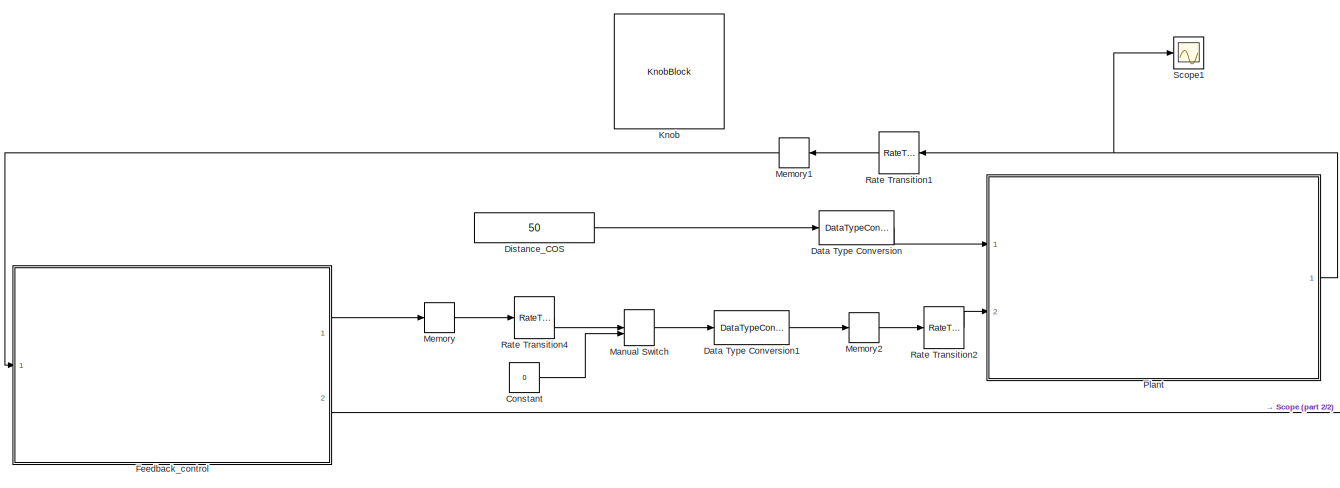
[diagram: root canvas - part 1/2, most of the canvas]
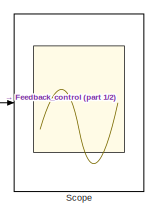
[diagram: root canvas - part 2/2, bottom right region]
MODEL slx_d25e92f43205
KIND model
CONFIG AbsTol = auto
CONFIG EnableMultiTasking = off
CONFIG FixedStep = 0.000001
CONFIG MaxStep = auto
CONFIG MinStep = auto
CONFIG RelTol = 1e-3
CONFIG SampleTimeConstraint = Unconstrained
CONFIG SolverName = FixedStepAuto
CONFIG StartTime = 0.0
CONFIG StopTime = 1
BLOCK [Constant] Constant
  Value = 0
BLOCK [DataTypeConversion] Data Type Conversion
  OutDataTypeStr = single
  RndMeth = Floor
  SaturateOnIntegerOverflow = off
BLOCK [DataTypeConversion] Data Type Conversion1
  OutDataTypeStr = single
  RndMeth = Floor
  SaturateOnIntegerOverflow = off
BLOCK [Constant] Distance_COS
  Value = 50
BLOCK [ModelReference] Feedback_control
  ModelNameDialog = Controller_CalDistance0
  ModelReferenceVersion = 1.46
  Ports = [1, 2]
BLOCK [KnobBlock] Knob
  ScaleMax = 400
  ScaleMin = 2
BLOCK [ManualSwitch] Manual Switch
BLOCK [Memory] Memory
BLOCK [Memory] Memory1
BLOCK [Memory] Memory2
BLOCK [ModelReference] Plant
  ModelNameDialog = Plant0
  ModelReferenceVersion = 1.24
  Ports = [2, 1]
BLOCK [RateTransition] Rate Transition1
BLOCK [RateTransition] Rate Transition2
BLOCK [RateTransition] Rate Transition4
BLOCK [Scope] Scope
  Floating = off
  NumInputPorts = 1
  Ports = [1]
  ScopeSpecificationString = Simulink.scopes.TimeScopeBlockCfg('CurrentConfiguration', extmgr.ConfigurationSet(extmgr.Configuration('Core','General UI',true),extmgr.Configuration('Core','Source UI',true),extmgr.Configuration('Sources','WiredSimulink',true,'DataLoggingVariableName','ScopeData1'),extmgr.Configuration('Visuals','Time Domain',true,'SerializedDisplays',{struct('MinYLimReal','-0.125','MaxYLimReal','1.125','YLabelRe...<+1392ch>
BLOCK [Scope] Scope1
  Floating = off
  NumInputPorts = 1
  Ports = [1]
  ScopeSpecificationString = Simulink.scopes.TimeScopeBlockCfg('CurrentConfiguration', extmgr.ConfigurationSet(extmgr.Configuration('Core','General UI',true),extmgr.Configuration('Core','Source UI',true),extmgr.Configuration('Sources','WiredSimulink',true,'DataLoggingVariableName','ScopeData1'),extmgr.Configuration('Visuals','Time Domain',true,'SerializedDisplays',{struct('MinYLimReal','-0.125','MaxYLimReal','1.125','YLabelRe...<+1352ch>
LINE Constant:1 -> Manual Switch:2
LINE Data Type Conversion1:1 -> Memory2:1
LINE Data Type Conversion:1 -> Plant:1
LINE Distance_COS:1 -> Data Type Conversion:1
LINE Feedback_control:1 -> Memory:1
LINE Feedback_control:2 -> Scope:1
LINE Manual Switch:1 -> Data Type Conversion1:1
LINE Memory1:1 -> Feedback_control:1
LINE Memory2:1 -> Rate Transition2:1
LINE Memory:1 -> Rate Transition4:1
NET Plant:1 -> Rate Transition1:1, Scope1:1
LINE Rate Transition1:1 -> Memory1:1
LINE Rate Transition2:1 -> Plant:2
LINE Rate Transition4:1 -> Manual Switch:1
note: NET lines group one-source signal fan-out (src -> all destinations, sorted); 1:1 wires keep LINE
CHART Test Sequence states=9 transitions=9
  STATE_LABEL 'step_1\nEcho=1'
  STATE_LABEL 'step_2\nEcho=0'
  STATE_LABEL 'step_3\nEcho=1'
  STATE_LABEL 'step_4\nEcho=0'
  STATE_LABEL 'step_9\nEcho=1'
  STATE_LABEL 'step_5\nEcho=0'
  STATE_LABEL 'step_6\nEcho=1'
  STATE_LABEL 'step_7\nEcho=0'
  STATE_LABEL 'step_8\nEcho=1'
CHART Test Sequence states=8 transitions=9
  STATE_LABEL 'step_1\nEcho=1'
  STATE_LABEL 'step_2\nEcho=0'
  STATE_LABEL 'step_3\nEcho=1'
  STATE_LABEL 'step_4\nEcho=0'
  STATE_LABEL 'step_5\nEcho=1'
  STATE_LABEL 'step_6\nEcho=0'
  STATE_LABEL 'step_7\nEcho=1'
  STATE_LABEL 'step_8\nEcho=0'
CHART Test Sequence states=8 transitions=8
  STATE_LABEL 'step_1\nEcho=1'
  STATE_LABEL 'step_2\nEcho=0'
  STATE_LABEL 'step_3\nEcho=1'
  STATE_LABEL 'step_4\nEcho=0'
  STATE_LABEL 'step_5\nEcho=1'
  STATE_LABEL 'step_6\nEcho=0'
  STATE_LABEL 'step_7\nEcho=1'
  STATE_LABEL 'step_8\nEcho=0'
